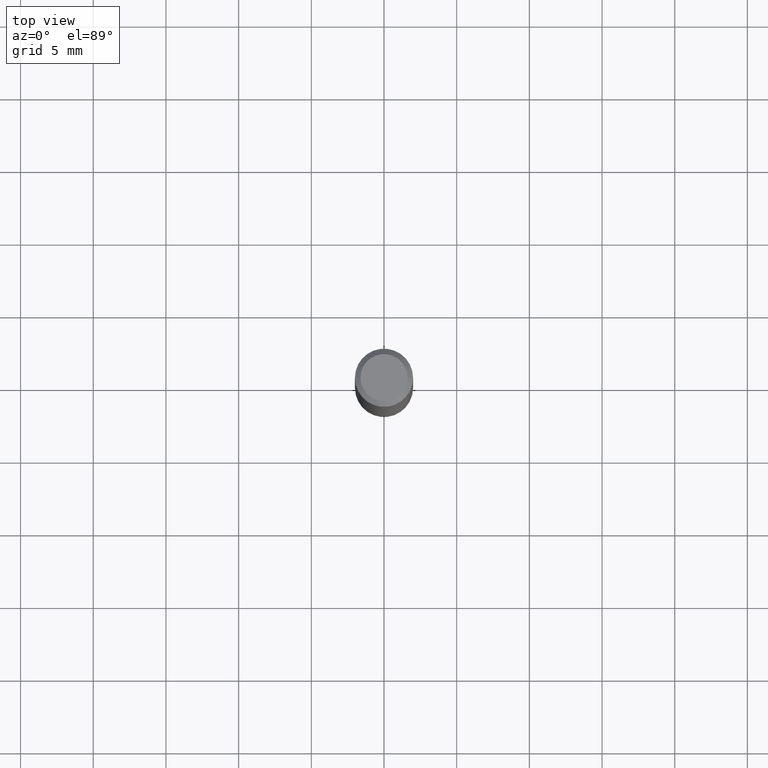
[diagram: clean part render]
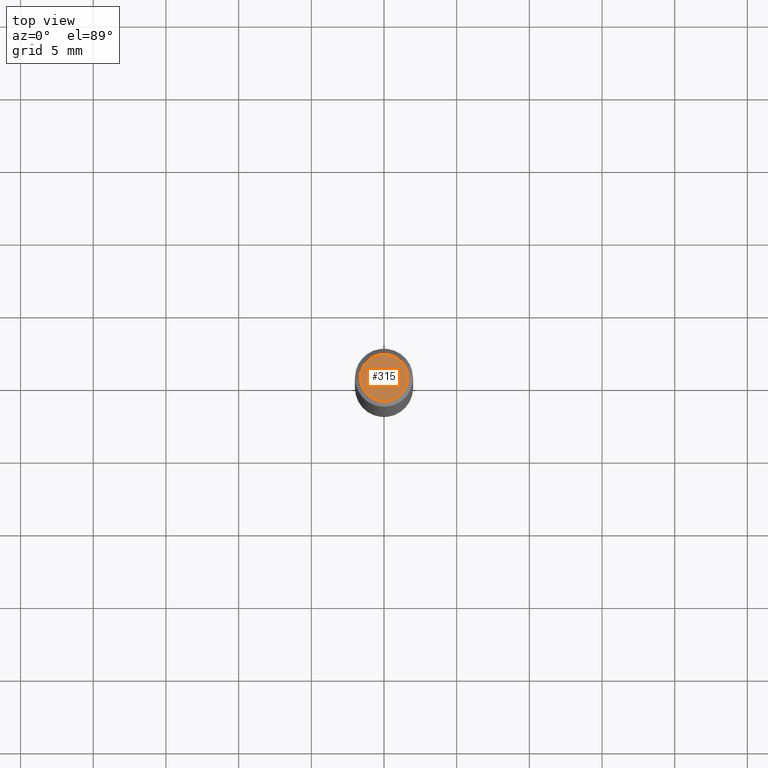
[diagram: same view with one face highlighted and labeled with its STEP entity id]
A machine part, top view. The second image highlights one B-rep face of the part: STEP entity #315.
In plain terms, the highlighted planar face has unit normal (0, -0, -1).
Its self-contained STEP definition (entity closure, byte-faithful):
#1 = FACE_OUTER_BOUND ( 'NONE', #258, .T. ) ;
#21 = CARTESIAN_POINT ( 'NONE',  ( -0.06375000000000000111, 4.713499807438220366E-16, -5.010489548961637354E-16 ) ) ;
#40 = CIRCLE ( 'NONE', #167, 0.06375000000000000111 ) ;
#53 = VERTEX_POINT ( 'NONE', #21 ) ;
#56 = DIRECTION ( 'NONE',  ( 1.000000000000000000, -6.982962677686265922E-15, 4.852736867747365646E-29 ) ) ;
#99 = DIRECTION ( 'NONE',  ( -2.445468806185136597E-29, 3.491481338843145583E-15, 1.000000000000000000 ) ) ;
#106 = ORIENTED_EDGE ( 'NONE', *, *, #321, .T. ) ;
#167 = AXIS2_PLACEMENT_3D ( 'NONE', #460, #99, #267 ) ;
#211 = DIRECTION ( 'NONE',  ( 2.438088387897960049E-29, -3.491481338843145188E-15, -1.000000000000000000 ) ) ;
#227 = CARTESIAN_POINT ( 'NONE',  ( 1.225299589570224228E-44, -1.749403075866805544E-30, -5.010489548961605800E-16 ) ) ;
#250 = AXIS2_PLACEMENT_3D ( 'NONE', #227, #412, #56 ) ;
#258 = EDGE_LOOP ( 'NONE', ( #106, #264 ) ) ;
#264 = ORIENTED_EDGE ( 'NONE', *, *, #325, .T. ) ;
#267 = DIRECTION ( 'NONE',  ( 1.000000000000000000, -6.982962677686265922E-15, 4.852736867747365646E-29 ) ) ;
#275 = CARTESIAN_POINT ( 'NONE',  ( 0.06375000000000000111, -5.149965923825460154E-16, -5.010489548961572273E-16 ) ) ;
#309 = PLANE ( 'NONE',  #414 ) ;
#315 = ADVANCED_FACE ( 'NONE', ( #1 ), #309, .F. ) ;
#321 = EDGE_CURVE ( 'NONE', #53, #363, #330, .T. ) ;
#325 = EDGE_CURVE ( 'NONE', #363, #53, #40, .T. ) ;
#330 = CIRCLE ( 'NONE', #250, 0.06375000000000000111 ) ;
#351 = DIRECTION ( 'NONE',  ( -1.000000000000000000, 6.982962677686265922E-15, -4.876176775795935793E-29 ) ) ;
#363 = VERTEX_POINT ( 'NONE', #275 ) ;
#412 = DIRECTION ( 'NONE',  ( -2.445468806185136597E-29, 3.491481338843145583E-15, 1.000000000000000000 ) ) ;
#414 = AXIS2_PLACEMENT_3D ( 'NONE', #423, #211, #351 ) ;
#423 = CARTESIAN_POINT ( 'NONE',  ( 4.451638707024993845E-16, 0.06375000000000000111, -4.731064127993307711E-16 ) ) ;
#460 = CARTESIAN_POINT ( 'NONE',  ( 1.225299589570224228E-44, -1.749403075866805544E-30, -5.010489548961605800E-16 ) ) ;